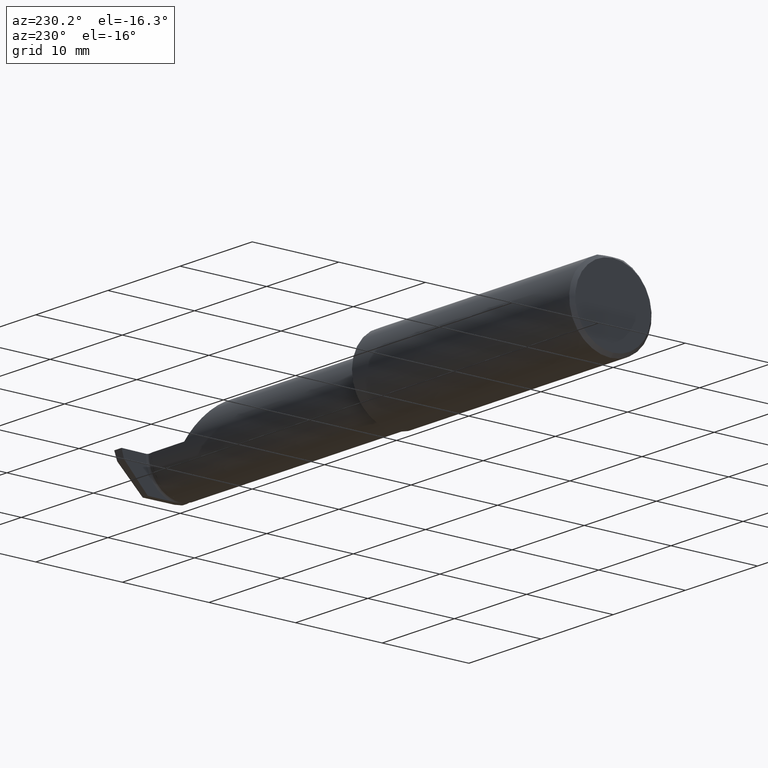
[diagram: clean part render]
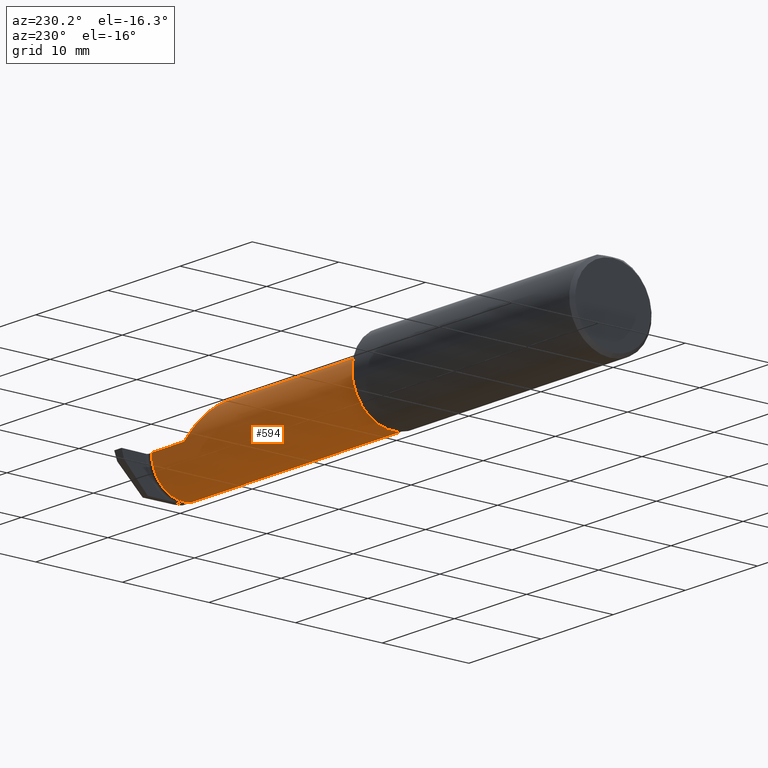
[diagram: same view with one face highlighted and labeled with its STEP entity id]
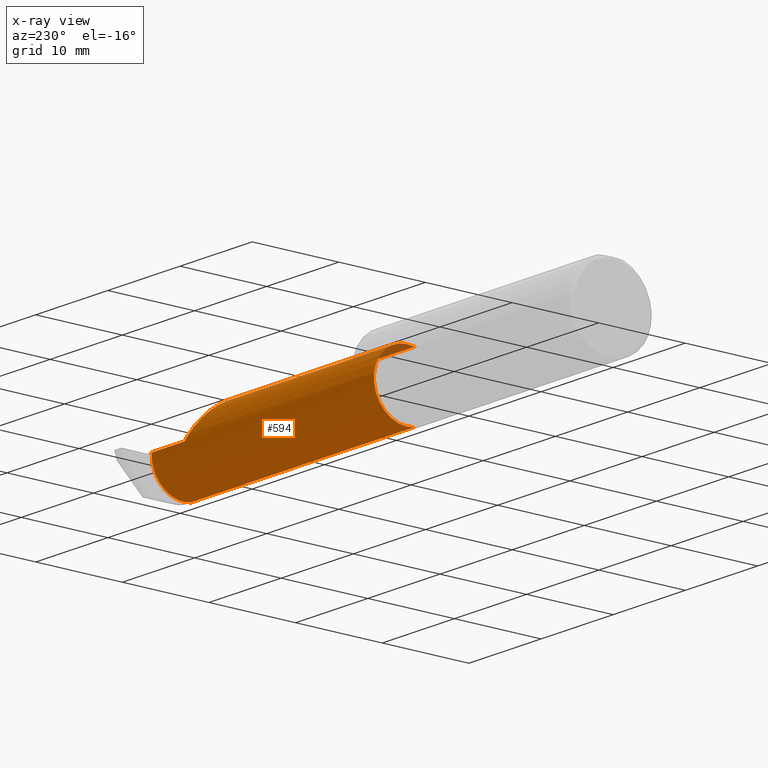
[diagram: x-ray of the same camera — body ghosted, the highlighted face saturated]
A machine part, auxiliary view. The second image highlights one B-rep face of the part: STEP entity #594.
The next image is the same camera in x-ray: the body ghosted, the highlighted face saturated — about 2% of this face is hidden behind the body in this view.
In plain terms, the highlighted cylindrical surface (partial cylindrical patch) has radius 3.81 mm, axis along (-1, -0, -0).
Its self-contained STEP definition (entity closure, byte-faithful):
#13 = CARTESIAN_POINT ( 'NONE',  ( 2.443647039190288250, -0.1172600179964006645, -0.1461167706989303094 ) ) ;
#16 = CARTESIAN_POINT ( 'NONE',  ( 1.225000000000000089, -0.08334999999999996578, 0.000000000000000000 ) ) ;
#55 = CARTESIAN_POINT ( 'NONE',  ( 2.113883229301070532, -0.1172600179964006228, 0.1461167706989303650 ) ) ;
#79 = CARTESIAN_POINT ( 'NONE',  ( 2.443046201255658634, -0.008364411415374979619, -0.1303958719657763166 ) ) ;
#112 = VERTEX_POINT ( 'NONE', #480 ) ;
#131 = DIRECTION ( 'NONE',  ( -1.000000000000000000, -1.360482068557899815E-17, -0.000000000000000000 ) ) ;
#147 = CARTESIAN_POINT ( 'NONE',  ( 2.443815344807789280, -0.07244319703337467886, -0.1500290047513205272 ) ) ;
#150 = LINE ( 'NONE', #219, #722 ) ;
#158 = CARTESIAN_POINT ( 'NONE',  ( 2.443759016412478058, -0.06120540515719563590, -0.1487771738941302824 ) ) ;
#159 = DIRECTION ( 'NONE',  ( 1.000000000000000000, 1.360482068557899661E-17, 0.000000000000000000 ) ) ;
#197 = CARTESIAN_POINT ( 'NONE',  ( 1.840000000000000080, -0.1172600179964007477, -0.1461167706989302817 ) ) ;
#199 = EDGE_CURVE ( 'NONE', #497, #856, #804, .T. ) ;
#219 = CARTESIAN_POINT ( 'NONE',  ( 1.199999999999999956, 0.06665000000000001479, 1.592040838891560081E-16 ) ) ;
#229 = CARTESIAN_POINT ( 'NONE',  ( 2.442833554690706954, 0.001115449006575037517, -0.1244700368983151506 ) ) ;
#247 = EDGE_CURVE ( 'NONE', #407, #497, #736, .T. ) ;
#302 = CARTESIAN_POINT ( 'NONE',  ( 2.443647039190288250, -0.1172600179964006645, -0.1461167706989303094 ) ) ;
#304 = EDGE_LOOP ( 'NONE', ( #929, #791, #625, #559, #462, #670 ) ) ;
#306 = DIRECTION ( 'NONE',  ( 0.000000000000000000, -1.000000000000000000, 0.000000000000000000 ) ) ;
#307 = AXIS2_PLACEMENT_3D ( 'NONE', #391, #607, #905 ) ;
#309 = CARTESIAN_POINT ( 'NONE',  ( 2.260000000000000231, 0.06665000000000002867, 2.939152317953647352E-17 ) ) ;
#326 = EDGE_CURVE ( 'NONE', #407, #871, #728, .T. ) ;
#327 = CYLINDRICAL_SURFACE ( 'NONE', #307, 0.1499999999999999667 ) ;
#376 = CARTESIAN_POINT ( 'NONE',  ( 2.441258951838690905, 0.04075339827320652308, -0.08498986596956870088 ) ) ;
#378 = CARTESIAN_POINT ( 'NONE',  ( 2.442238177621209427, 0.01877818259010902505, -0.1104401941423122507 ) ) ;
#391 = CARTESIAN_POINT ( 'NONE',  ( 1.199999999999999956, -0.08334999999999996578, 0.000000000000000000 ) ) ;
#407 = VERTEX_POINT ( 'NONE', #709 ) ;
#442 = EDGE_CURVE ( 'NONE', #746, #871, #783, .T. ) ;
#447 = CARTESIAN_POINT ( 'NONE',  ( 1.840000000000000080, -0.1172600179964007477, 0.1461167706989302817 ) ) ;
#462 = ORIENTED_EDGE ( 'NONE', *, *, #247, .T. ) ;
#480 = CARTESIAN_POINT ( 'NONE',  ( 2.438000000000594358, 0.06664999999940504627, 8.765184870514689852E-18 ) ) ;
#496 = CARTESIAN_POINT ( 'NONE',  ( 2.113883229301070532, -0.1172600179964006228, 0.1461167706989303650 ) ) ;
#497 = VERTEX_POINT ( 'NONE', #55 ) ;
#503 = VECTOR ( 'NONE', #159, 39.37007874015748143 ) ;
#508 = CARTESIAN_POINT ( 'NONE',  ( 2.440128188932093600, 0.05660152407035793504, -0.05513071989678114404 ) ) ;
#513 = CARTESIAN_POINT ( 'NONE',  ( 2.438434870138774802, 0.06665000001257263829, -0.01133157783874108766 ) ) ;
#559 = ORIENTED_EDGE ( 'NONE', *, *, #326, .F. ) ;
#584 = DIRECTION ( 'NONE',  ( 1.000000000000000000, 1.360482068557899661E-17, 0.000000000000000000 ) ) ;
#592 = CARTESIAN_POINT ( 'NONE',  ( 2.438000000000594358, 0.06664999999940504627, 8.765184870514689852E-18 ) ) ;
#594 = ADVANCED_FACE ( 'NONE', ( #623 ), #327, .T. ) ;
#600 = B_SPLINE_CURVE_WITH_KNOTS ( 'NONE', 3,
 ( #592, #513, #658, #729, #508, #869, #376, #796, #378, #229, #79, #801, #725, #158, #147, #735, #661, #13 ),
 .UNSPECIFIED., .F., .F.,
 ( 4, 2, 2, 2, 2, 2, 2, 2, 4 ),
 ( 4.213146526243281227E-12, 0.0008601682351901824555, 0.001720336466167218369, 0.002580504697144254175, 0.003440672928121289980, 0.004300841159098325352, 0.005161009390075362024, 0.006021177621052396962, 0.006881345852029431900 ),
 .UNSPECIFIED. ) ;
#601 = CARTESIAN_POINT ( 'NONE',  ( 2.090221225029928576, -0.01530148607434153249, 0.1697787749700726267 ) ) ;
#607 = DIRECTION ( 'NONE',  ( -1.000000000000000000, -1.360482068557899815E-17, -0.000000000000000000 ) ) ;
#623 = FACE_OUTER_BOUND ( 'NONE', #304, .T. ) ;
#625 = ORIENTED_EDGE ( 'NONE', *, *, #442, .T. ) ;
#645 = CARTESIAN_POINT ( 'NONE',  ( 2.155331797197864496, 0.06665000000000011193, 0.1046682028021360122 ) ) ;
#658 = CARTESIAN_POINT ( 'NONE',  ( 2.438837466406894361, 0.06536221517194544528, -0.02262142833230705932 ) ) ;
#661 = CARTESIAN_POINT ( 'NONE',  ( 2.443733570787338660, -0.1062136811403325276, -0.1486803469386172860 ) ) ;
#670 = ORIENTED_EDGE ( 'NONE', *, *, #199, .T. ) ;
#709 = CARTESIAN_POINT ( 'NONE',  ( 1.225000000000000089, -0.1172600179964007477, 0.1461167706989302539 ) ) ;
#714 = DIRECTION ( 'NONE',  ( -1.000000000000000000, -1.360482068557899661E-17, -0.000000000000000000 ) ) ;
#722 = VECTOR ( 'NONE', #584, 39.37007874015748143 ) ;
#725 = CARTESIAN_POINT ( 'NONE',  ( 2.443526505352253686, -0.03939163170915623707, -0.1438495478264800731 ) ) ;
#728 = CIRCLE ( 'NONE', #770, 0.1499999999999999667 ) ;
#729 = CARTESIAN_POINT ( 'NONE',  ( 2.439687465777415465, 0.06031148358189447611, -0.04459181647107197249 ) ) ;
#731 = EDGE_CURVE ( 'NONE', #856, #112, #150, .T. ) ;
#735 = CARTESIAN_POINT ( 'NONE',  ( 2.443789578363352977, -0.09504051956460675410, -0.1499699715607563655 ) ) ;
#736 = LINE ( 'NONE', #447, #503 ) ;
#740 = EDGE_CURVE ( 'NONE', #112, #746, #600, .T. ) ;
#746 = VERTEX_POINT ( 'NONE', #302 ) ;
#770 = AXIS2_PLACEMENT_3D ( 'NONE', #16, #131, #306 ) ;
#783 = LINE ( 'NONE', #197, #812 ) ;
#791 = ORIENTED_EDGE ( 'NONE', *, *, #740, .T. ) ;
#796 = CARTESIAN_POINT ( 'NONE',  ( 2.441904550514355066, 0.02678675195047518220, -0.1024442611876472120 ) ) ;
#801 = CARTESIAN_POINT ( 'NONE',  ( 2.443382066057367741, -0.02860029826595508057, -0.1401013635948304970 ) ) ;
#804 =( BOUNDED_CURVE ( )  B_SPLINE_CURVE ( 3, ( #496, #601, #645, #860 ),
 .UNSPECIFIED., .F., .T. ) 
 B_SPLINE_CURVE_WITH_KNOTS ( ( 4, 4 ),
 ( 6.055147272130142255, 7.853981633974483678 ),
 .UNSPECIFIED. ) 
 CURVE ( )  GEOMETRIC_REPRESENTATION_ITEM ( )  RATIONAL_B_SPLINE_CURVE ( ( 1.000000000000000000, 0.7480442670255265103, 0.7480442670255265103, 1.000000000000000000 ) ) 
 REPRESENTATION_ITEM ( '' )  );
#812 = VECTOR ( 'NONE', #714, 39.37007874015748143 ) ;
#834 = CARTESIAN_POINT ( 'NONE',  ( 1.225000000000000089, -0.1172600179964006784, -0.1461167706989302817 ) ) ;
#856 = VERTEX_POINT ( 'NONE', #309 ) ;
#860 = CARTESIAN_POINT ( 'NONE',  ( 2.260000000000000231, 0.06665000000000002867, 2.939152317953647352E-17 ) ) ;
#869 = CARTESIAN_POINT ( 'NONE',  ( 2.440931591934131895, 0.04684530795327267877, -0.07533264334208518431 ) ) ;
#871 = VERTEX_POINT ( 'NONE', #834 ) ;
#905 = DIRECTION ( 'NONE',  ( 0.000000000000000000, -1.000000000000000000, 0.000000000000000000 ) ) ;
#929 = ORIENTED_EDGE ( 'NONE', *, *, #731, .T. ) ;